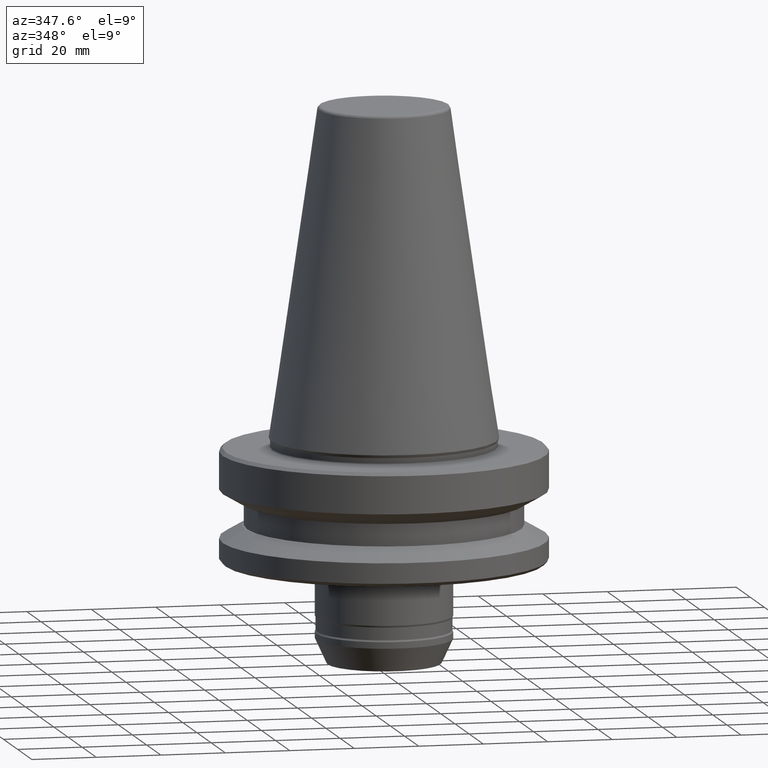
[diagram: clean part render]
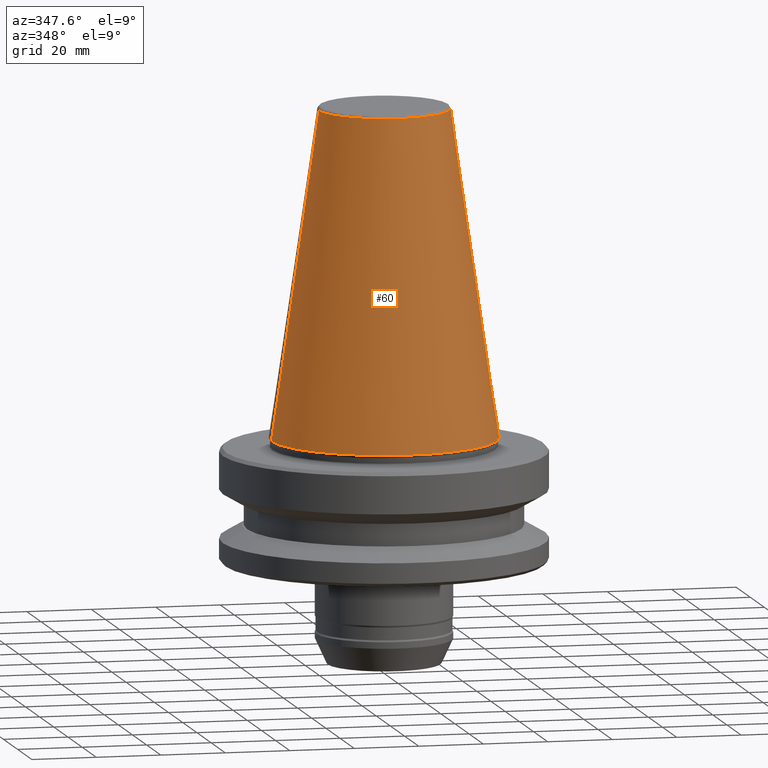
[diagram: same view with one face highlighted and labeled with its STEP entity id]
A machine part, auxiliary view. The second image highlights one B-rep face of the part: STEP entity #60.
In plain terms, the highlighted conical surface has half-angle 8.297 deg.
Its self-contained STEP definition (entity closure, byte-faithful):
#60 = ADVANCED_FACE ( 'NONE', ( #555 ), #539, .T. ) ;
#76 = CARTESIAN_POINT ( 'NONE',  ( 34.92499999999942900, 0.0000000000000000000, 0.0000000000000000000 ) ) ;
#192 = VECTOR ( 'NONE', #541, 999.9999999999998900 ) ;
#200 = LINE ( 'NONE', #1097, #192 ) ;
#206 = VECTOR ( 'NONE', #434, 999.9999999999998900 ) ;
#220 = VERTEX_POINT ( 'NONE', #1148 ) ;
#238 = LINE ( 'NONE', #821, #206 ) ;
#281 = AXIS2_PLACEMENT_3D ( 'NONE', #781, #304, #481 ) ;
#304 = DIRECTION ( 'NONE',  ( 0.0000000000000000000, 0.0000000000000000000, -1.000000000000000000 ) ) ;
#320 = AXIS2_PLACEMENT_3D ( 'NONE', #390, #1061, #500 ) ;
#332 = EDGE_CURVE ( 'NONE', #1087, #1195, #433, .T. ) ;
#341 = EDGE_CURVE ( 'NONE', #1013, #220, #406, .T. ) ;
#390 = CARTESIAN_POINT ( 'NONE',  ( 0.0000000000000000000, 0.0000000000000000000, 0.0000000000000000000 ) ) ;
#397 = CARTESIAN_POINT ( 'NONE',  ( 0.0000000000000000000, 0.0000000000000000000, 100.9443082234284800 ) ) ;
#406 = CIRCLE ( 'NONE', #635, 20.20381645192159700 ) ;
#433 = CIRCLE ( 'NONE', #320, 34.92499999999942900 ) ;
#434 = DIRECTION ( 'NONE',  ( -0.1443082234293895400, 0.0000000000000000000, -0.9895327870518760800 ) ) ;
#440 = CARTESIAN_POINT ( 'NONE',  ( -34.92499999999942900, 4.277078946022061500E-015, 0.0000000000000000000 ) ) ;
#481 = DIRECTION ( 'NONE',  ( -1.000000000000000000, 0.0000000000000000000, 0.0000000000000000000 ) ) ;
#500 = DIRECTION ( 'NONE',  ( 1.000000000000000000, 0.0000000000000000000, 0.0000000000000000000 ) ) ;
#507 = DIRECTION ( 'NONE',  ( 1.000000000000000000, 0.0000000000000000000, 0.0000000000000000000 ) ) ;
#538 = CARTESIAN_POINT ( 'NONE',  ( -20.20381645192159700, 0.0000000000000000000, 100.9443082234284800 ) ) ;
#539 = CONICAL_SURFACE ( 'NONE', #281, 34.92499999999942900, 0.1448138426689043500 ) ;
#541 = DIRECTION ( 'NONE',  ( 0.1443082234293895400, 1.767266039134429700E-017, -0.9895327870518760800 ) ) ;
#555 = FACE_OUTER_BOUND ( 'NONE', #1145, .T. ) ;
#635 = AXIS2_PLACEMENT_3D ( 'NONE', #397, #1063, #507 ) ;
#781 = CARTESIAN_POINT ( 'NONE',  ( 0.0000000000000000000, 0.0000000000000000000, 0.0000000000000000000 ) ) ;
#821 = CARTESIAN_POINT ( 'NONE',  ( -34.92499999999942900, 0.0000000000000000000, 0.0000000000000000000 ) ) ;
#960 = EDGE_CURVE ( 'NONE', #1013, #1087, #238, .T. ) ;
#1011 = EDGE_CURVE ( 'NONE', #220, #1195, #200, .T. ) ;
#1013 = VERTEX_POINT ( 'NONE', #538 ) ;
#1021 = ORIENTED_EDGE ( 'NONE', *, *, #1011, .F. ) ;
#1058 = ORIENTED_EDGE ( 'NONE', *, *, #960, .T. ) ;
#1061 = DIRECTION ( 'NONE',  ( -0.0000000000000000000, -0.0000000000000000000, 1.000000000000000000 ) ) ;
#1063 = DIRECTION ( 'NONE',  ( -0.0000000000000000000, -0.0000000000000000000, 1.000000000000000000 ) ) ;
#1087 = VERTEX_POINT ( 'NONE', #440 ) ;
#1097 = CARTESIAN_POINT ( 'NONE',  ( 34.92499999999942900, 4.277078946022061500E-015, 0.0000000000000000000 ) ) ;
#1135 = ORIENTED_EDGE ( 'NONE', *, *, #332, .T. ) ;
#1136 = ORIENTED_EDGE ( 'NONE', *, *, #341, .F. ) ;
#1145 = EDGE_LOOP ( 'NONE', ( #1021, #1136, #1058, #1135 ) ) ;
#1148 = CARTESIAN_POINT ( 'NONE',  ( 20.20381645192159700, 3.375666430431351600E-015, 100.9443082234284800 ) ) ;
#1195 = VERTEX_POINT ( 'NONE', #76 ) ;